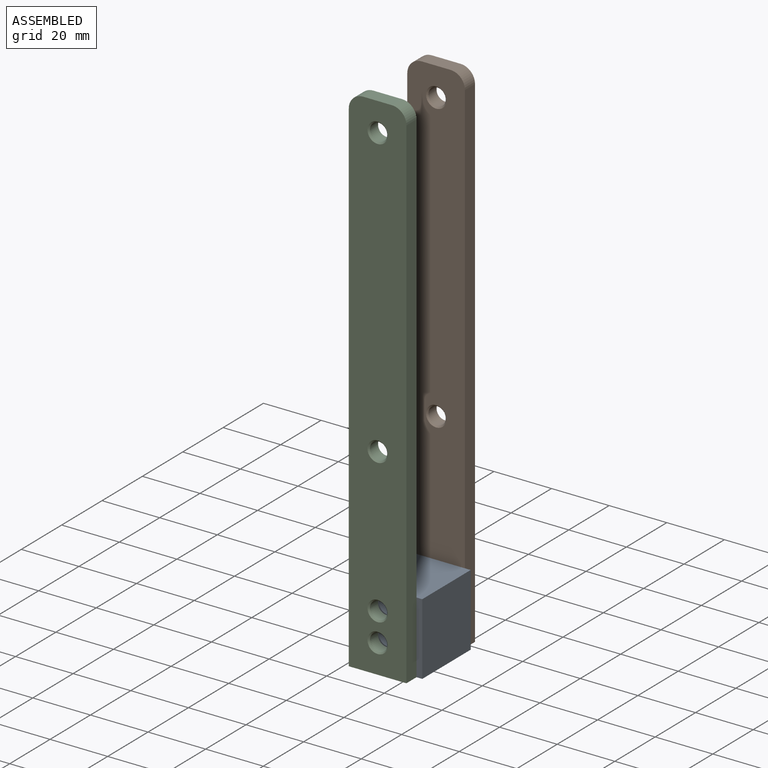
[diagram: assembled view]
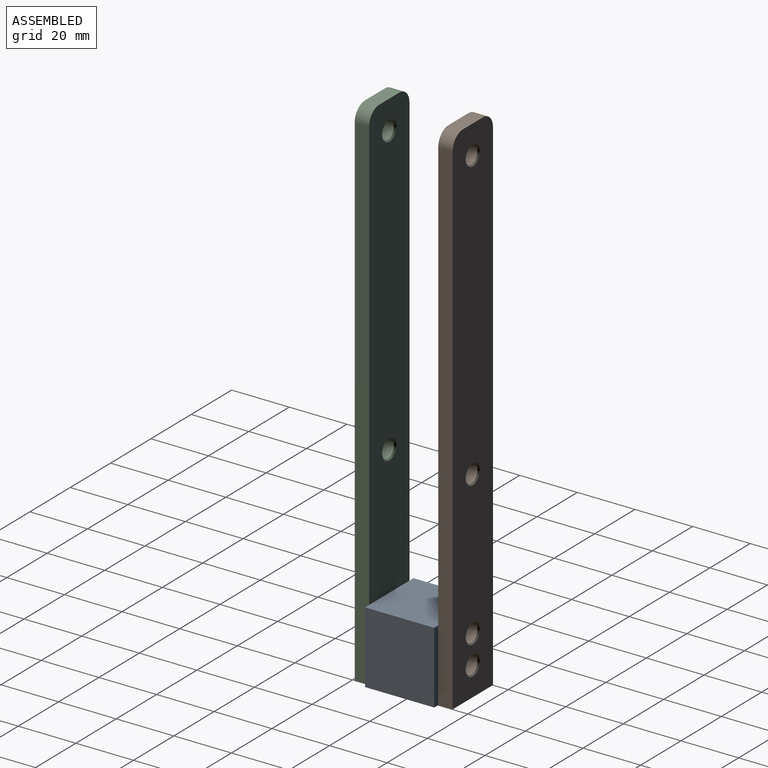
[diagram: assembled view, second angle]
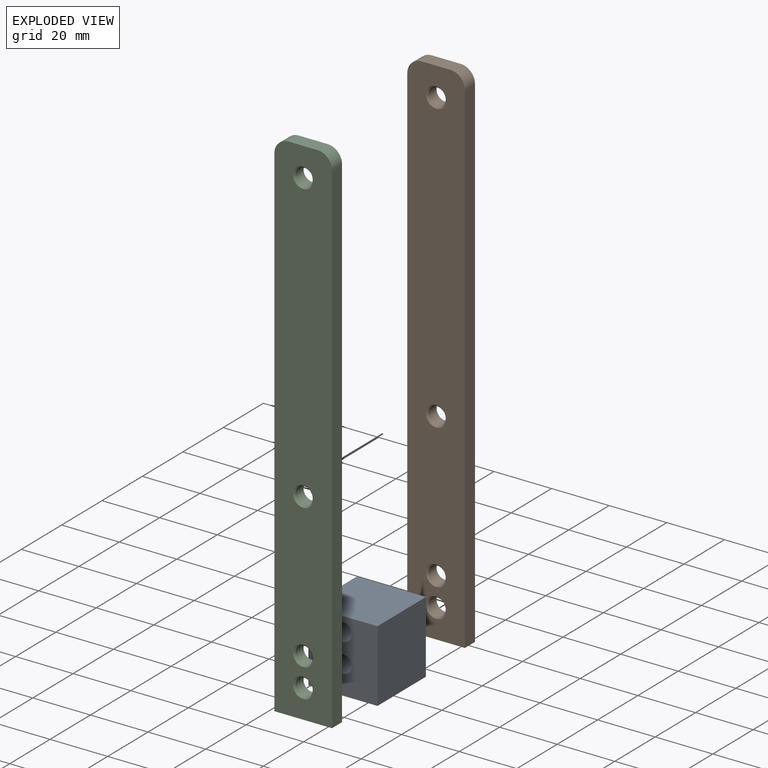
[diagram: exploded view]
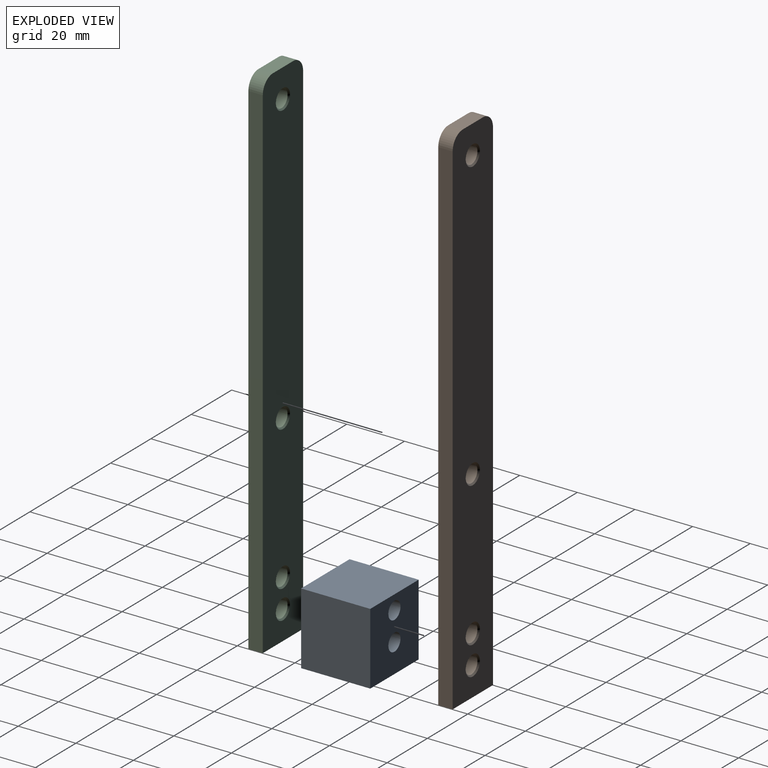
[diagram: exploded view, second angle]
ASSEMBLY  parts=3 mates=4
PART A: 8 faces, bbox 24x24x25 mm
  f0: plane 25x24mm, normal (0,1,0), area 543.5mm2, adj f1,f3,f4,f5,f6,f7
  f1: plane 25x24mm, normal (-1,0,0), area 600mm2, adj f0,f2,f4,f5
  f2: plane 25x24mm, normal (0,-1,0), area 543.5mm2, adj f1,f3,f4,f5,f6,f7
  f3: plane 25x24mm, normal (1,0,0), area 600mm2, adj f0,f2,f4,f5
  f4: plane 24x24mm, normal (0,0,1), area 576mm2, adj f0,f1,f2,f3
  f5: plane 24x24mm, normal (0,0,-1), area 576mm2, adj f0,f1,f2,f3
  f6: cylinder r=3mm len=24mm, axis (0,-1,0), area 452.4mm2, adj f0,f2
  f7: cylinder r=3mm len=24mm, axis (0,-1,0), area 452.4mm2, adj f0,f2
PART B: 20 faces, bbox 20x5x180 mm
  f0: plane 175x5mm, normal (-1,0,0), area 875mm2, adj f1,f4,f5,f19
  f1: plane 20x5mm, normal (0,0,-1), area 100mm2, adj f0,f2,f4,f5
  f2: plane 175x5mm, normal (1,0,0), area 875mm2, adj f1,f4,f5,f18
  f3: plane 10x5mm, normal (0,0,1), area 50mm2, adj f4,f5,f18,f19
  f4: plane 180x20mm, normal (0,-1,0), area 3435.3mm2, adj f0,f1,f2,f3,f11,f13,f14,f17
  f5: plane 180x20mm, normal (0,1,0), area 3435.3mm2, adj f0,f1,f2,f3,f10,f12,f15,f16
  f6: cylinder r=3mm len=6mm, axis (0,-1,0), area 75.4mm2, adj f16,f17
  f7: cylinder r=3mm len=6mm, axis (0,-1,0), area 75.4mm2, adj f14,f15
  f8: cylinder r=3mm len=6mm, axis (0,-1,0), area 75.4mm2, adj f10,f11
  f9: cylinder r=3mm len=6mm, axis (0,-1,0), area 75.4mm2, adj f12,f13
  f10: cone r=3mm half-angle=45deg, axis (0,1,0), area 14.4mm2, adj f5,f8
  f11: cone r=3mm half-angle=45deg, axis (0,-1,0), area 14.4mm2, adj f4,f8
  f12: cone r=3mm half-angle=45deg, axis (0,1,0), area 14.4mm2, adj f5,f9
  f13: cone r=3mm half-angle=45deg, axis (0,-1,0), area 14.4mm2, adj f4,f9
  f14: cone r=3mm half-angle=45deg, axis (0,-1,0), area 14.4mm2, adj f4,f7
  f15: cone r=3mm half-angle=45deg, axis (0,1,0), area 14.4mm2, adj f5,f7
  f16: cone r=3.5mm half-angle=45deg, axis (0,1,0), area 14.4mm2, adj f5,f6
  f17: cone r=3mm half-angle=45deg, axis (0,-1,0), area 14.4mm2, adj f4,f6
  f18: cylinder r=5mm len=5mm, axis (0,-1,0), area 39.3mm2, adj f2,f3,f4,f5
  f19: cylinder r=5mm len=5mm, axis (0,1,0), area 39.3mm2, adj f0,f3,f4,f5
PART C: same geometry as B
PLACE A rot(axis=(0,1,0.03),0deg) t=(-57.21,13.12,-11.76)mm
PLACE B rot(axis=(0.04,0.05,1),0deg) t=(-55.21,18.12,-11.76)mm
PLACE C rot(axis=(0,1,0.01),0deg) t=(-55.21,-10.88,-11.76)mm
MATE cylindrical C.f9 <-> A.f6  axis (0,1,0) through (-45.21,-10.88,8.24)mm
MATE cylindrical B.f9 <-> A.f6  axis (0,-1,0) through (-45.21,13.12,8.24)mm
MATE cylindrical C.f8 <-> A.f7  axis (0,1,0) through (-45.21,-10.88,-1.76)mm
MATE cylindrical B.f8 <-> A.f7  axis (0,-1,0) through (-45.21,13.12,-1.76)mm
